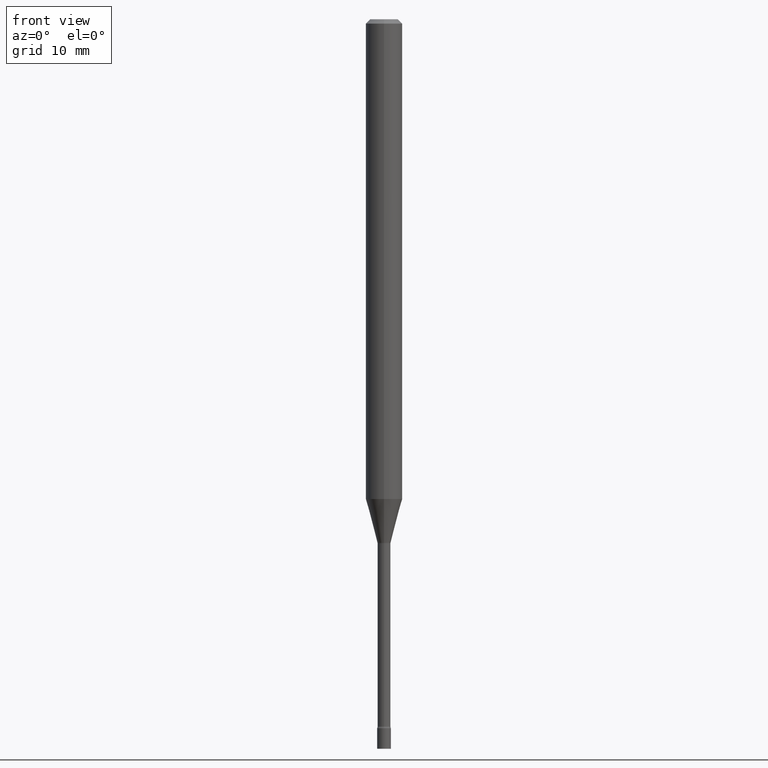
[diagram: clean part render]
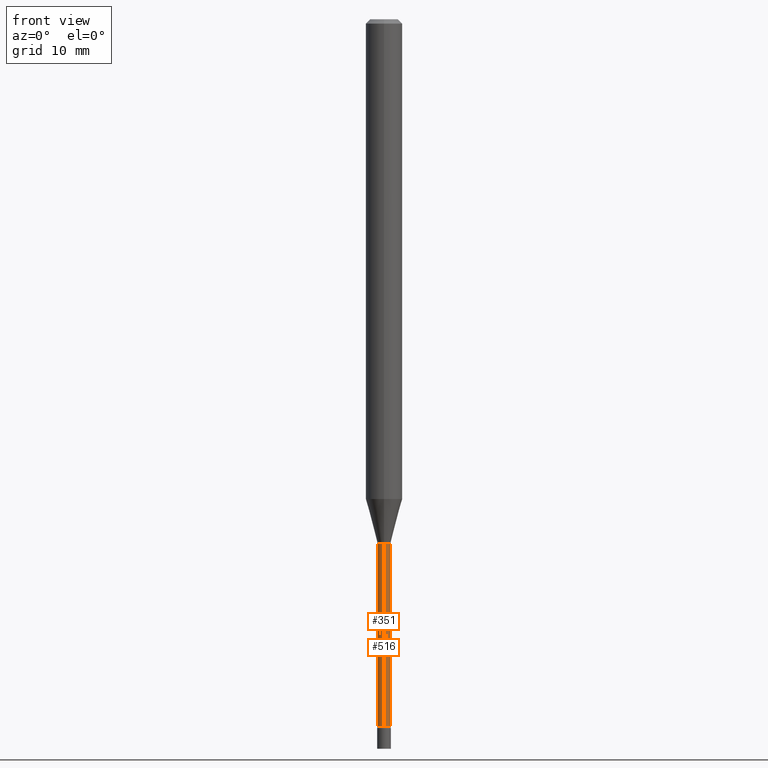
[diagram: same view with one multi-face feature highlighted, each face labeled with its STEP entity id]
A machine part, front view. The highlighted faces form ONE feature: a constant-radius fillet chain: 2 tangent blend faces with common blend radius 0.5613 mm. The faces share edges in the B-rep.
Their STEP definitions:
[1] entity #351 (Cylinder):
#25 = DIRECTION ( 'NONE',  ( -2.445458238190760089E-29, 3.491496472812585621E-15, 1.000000000000000000 ) ) ;
#56 = CARTESIAN_POINT ( 'NONE',  ( 1.570299446029824235E-16, 0.02210000000000004322, -7.716207204915829102E-17 ) ) ;
#57 = DIRECTION ( 'NONE',  ( -6.982962677686265922E-15, -1.000000000000000000, 0.000000000000000000 ) ) ;
#60 = CARTESIAN_POINT ( 'NONE',  ( -1.543234751768667826E-16, -0.02210000000000004322, 7.716207204915829102E-17 ) ) ;
#64 = CARTESIAN_POINT ( 'NONE',  ( -1.543234751768078153E-16, -0.02210000000000854337, -2.422672283192177645 ) ) ;
#68 = ORIENTED_EDGE ( 'NONE', *, *, #354, .F. ) ;
#81 = VERTEX_POINT ( 'NONE', #184 ) ;
#82 = CYLINDRICAL_SURFACE ( 'NONE', #162, 0.02210000000000004322 ) ;
#85 = EDGE_CURVE ( 'NONE', #119, #321, #439, .T. ) ;
#98 = DIRECTION ( 'NONE',  ( -6.982962677686265922E-15, -1.000000000000000000, 3.491496472812585621E-15 ) ) ;
#102 = LINE ( 'NONE', #60, #410 ) ;
#119 = VERTEX_POINT ( 'NONE', #166 ) ;
#131 = DIRECTION ( 'NONE',  ( -2.445458238190760089E-29, 3.491496472812585621E-15, 1.000000000000000000 ) ) ;
#149 = EDGE_CURVE ( 'NONE', #321, #461, #102, .T. ) ;
#161 = DIRECTION ( 'NONE',  ( -2.445458238190760089E-29, 3.491496472812585621E-15, 1.000000000000000000 ) ) ;
#162 = AXIS2_PLACEMENT_3D ( 'NONE', #437, #161, #98 ) ;
#166 = CARTESIAN_POINT ( 'NONE',  ( 1.620037437533624565E-16, 0.02209999999999162287, -2.422672283192177645 ) ) ;
#167 = ORIENTED_EDGE ( 'NONE', *, *, #85, .T. ) ;
#184 = CARTESIAN_POINT ( 'NONE',  ( 1.570299446030416374E-16, 0.02209999999999372536, -1.796974787463811118 ) ) ;
#239 = ORIENTED_EDGE ( 'NONE', *, *, #462, .F. ) ;
#265 = AXIS2_PLACEMENT_3D ( 'NONE', #427, #460, #57 ) ;
#286 = CARTESIAN_POINT ( 'NONE',  ( -1.543234751768225325E-16, -0.02210000000000627435, -1.796974787463811118 ) ) ;
#290 = DIRECTION ( 'NONE',  ( -6.982962677686265922E-15, -1.000000000000000000, 0.000000000000000000 ) ) ;
#294 = CIRCLE ( 'NONE', #489, 0.02210000000000000159 ) ;
#321 = VERTEX_POINT ( 'NONE', #64 ) ;
#342 = DIRECTION ( 'NONE',  ( -2.445458238190760089E-29, 3.491496472812585621E-15, 1.000000000000000000 ) ) ;
#351 = ADVANCED_FACE ( 'NONE', ( #444 ), #82, .T. ) ;
#354 = EDGE_CURVE ( 'NONE', #119, #81, #497, .T. ) ;
#408 = EDGE_LOOP ( 'NONE', ( #68, #167, #418, #239 ) ) ;
#410 = VECTOR ( 'NONE', #342, 39.37007874015748143 ) ;
#418 = ORIENTED_EDGE ( 'NONE', *, *, #149, .T. ) ;
#427 = CARTESIAN_POINT ( 'NONE',  ( 5.924543893368729790E-29, -8.458751731546301603E-15, -2.422672283192177645 ) ) ;
#437 = CARTESIAN_POINT ( 'NONE',  ( 0.000000000000000000, 0.000000000000000000, 0.000000000000000000 ) ) ;
#439 = CIRCLE ( 'NONE', #265, 0.02210000000000008138 ) ;
#444 = FACE_OUTER_BOUND ( 'NONE', #408, .T. ) ;
#451 = CARTESIAN_POINT ( 'NONE',  ( 4.394426797824467724E-29, -6.274131132163043039E-15, -1.796974787463811118 ) ) ;
#460 = DIRECTION ( 'NONE',  ( -2.445458238190760089E-29, 3.491496472812585621E-15, 1.000000000000000000 ) ) ;
#461 = VERTEX_POINT ( 'NONE', #286 ) ;
#462 = EDGE_CURVE ( 'NONE', #81, #461, #294, .T. ) ;
#489 = AXIS2_PLACEMENT_3D ( 'NONE', #451, #131, #290 ) ;
#497 = LINE ( 'NONE', #56, #503 ) ;
#503 = VECTOR ( 'NONE', #25, 39.37007874015748143 ) ;
[2] entity #516 (Cylinder):
#25 = DIRECTION ( 'NONE',  ( -2.445458238190760089E-29, 3.491496472812585621E-15, 1.000000000000000000 ) ) ;
#29 = DIRECTION ( 'NONE',  ( -2.445458238190760089E-29, 3.491496472812585621E-15, 1.000000000000000000 ) ) ;
#44 = ORIENTED_EDGE ( 'NONE', *, *, #354, .T. ) ;
#56 = CARTESIAN_POINT ( 'NONE',  ( 1.570299446029824235E-16, 0.02210000000000004322, -7.716207204915829102E-17 ) ) ;
#60 = CARTESIAN_POINT ( 'NONE',  ( -1.543234751768667826E-16, -0.02210000000000004322, 7.716207204915829102E-17 ) ) ;
#62 = FACE_OUTER_BOUND ( 'NONE', #129, .T. ) ;
#64 = CARTESIAN_POINT ( 'NONE',  ( -1.543234751768078153E-16, -0.02210000000000854337, -2.422672283192177645 ) ) ;
#81 = VERTEX_POINT ( 'NONE', #184 ) ;
#102 = LINE ( 'NONE', #60, #410 ) ;
#119 = VERTEX_POINT ( 'NONE', #166 ) ;
#129 = EDGE_LOOP ( 'NONE', ( #157, #44, #355, #177 ) ) ;
#135 = AXIS2_PLACEMENT_3D ( 'NONE', #296, #187, #345 ) ;
#149 = EDGE_CURVE ( 'NONE', #321, #461, #102, .T. ) ;
#157 = ORIENTED_EDGE ( 'NONE', *, *, #329, .T. ) ;
#166 = CARTESIAN_POINT ( 'NONE',  ( 1.620037437533624565E-16, 0.02209999999999162287, -2.422672283192177645 ) ) ;
#172 = CYLINDRICAL_SURFACE ( 'NONE', #236, 0.02210000000000004322 ) ;
#177 = ORIENTED_EDGE ( 'NONE', *, *, #149, .F. ) ;
#184 = CARTESIAN_POINT ( 'NONE',  ( 1.570299446030416374E-16, 0.02209999999999372536, -1.796974787463811118 ) ) ;
#185 = CARTESIAN_POINT ( 'NONE',  ( 0.000000000000000000, 0.000000000000000000, 0.000000000000000000 ) ) ;
#187 = DIRECTION ( 'NONE',  ( -2.445458238190760089E-29, 3.491496472812585621E-15, 1.000000000000000000 ) ) ;
#188 = DIRECTION ( 'NONE',  ( -6.982962677686265922E-15, -1.000000000000000000, 0.000000000000000000 ) ) ;
#205 = EDGE_CURVE ( 'NONE', #461, #81, #364, .T. ) ;
#236 = AXIS2_PLACEMENT_3D ( 'NONE', #185, #424, #292 ) ;
#254 = CIRCLE ( 'NONE', #324, 0.02210000000000008138 ) ;
#286 = CARTESIAN_POINT ( 'NONE',  ( -1.543234751768225325E-16, -0.02210000000000627435, -1.796974787463811118 ) ) ;
#292 = DIRECTION ( 'NONE',  ( -6.982962677686265922E-15, -1.000000000000000000, 3.491496472812585621E-15 ) ) ;
#296 = CARTESIAN_POINT ( 'NONE',  ( 4.394426797824467724E-29, -6.274131132163043039E-15, -1.796974787463811118 ) ) ;
#321 = VERTEX_POINT ( 'NONE', #64 ) ;
#324 = AXIS2_PLACEMENT_3D ( 'NONE', #353, #29, #188 ) ;
#329 = EDGE_CURVE ( 'NONE', #321, #119, #254, .T. ) ;
#342 = DIRECTION ( 'NONE',  ( -2.445458238190760089E-29, 3.491496472812585621E-15, 1.000000000000000000 ) ) ;
#345 = DIRECTION ( 'NONE',  ( -6.982962677686265922E-15, -1.000000000000000000, 0.000000000000000000 ) ) ;
#353 = CARTESIAN_POINT ( 'NONE',  ( 5.924543893368729790E-29, -8.458751731546301603E-15, -2.422672283192177645 ) ) ;
#354 = EDGE_CURVE ( 'NONE', #119, #81, #497, .T. ) ;
#355 = ORIENTED_EDGE ( 'NONE', *, *, #205, .F. ) ;
#364 = CIRCLE ( 'NONE', #135, 0.02210000000000000159 ) ;
#410 = VECTOR ( 'NONE', #342, 39.37007874015748143 ) ;
#424 = DIRECTION ( 'NONE',  ( -2.445458238190760089E-29, 3.491496472812585621E-15, 1.000000000000000000 ) ) ;
#461 = VERTEX_POINT ( 'NONE', #286 ) ;
#497 = LINE ( 'NONE', #56, #503 ) ;
#503 = VECTOR ( 'NONE', #25, 39.37007874015748143 ) ;
#516 = ADVANCED_FACE ( 'NONE', ( #62 ), #172, .T. ) ;